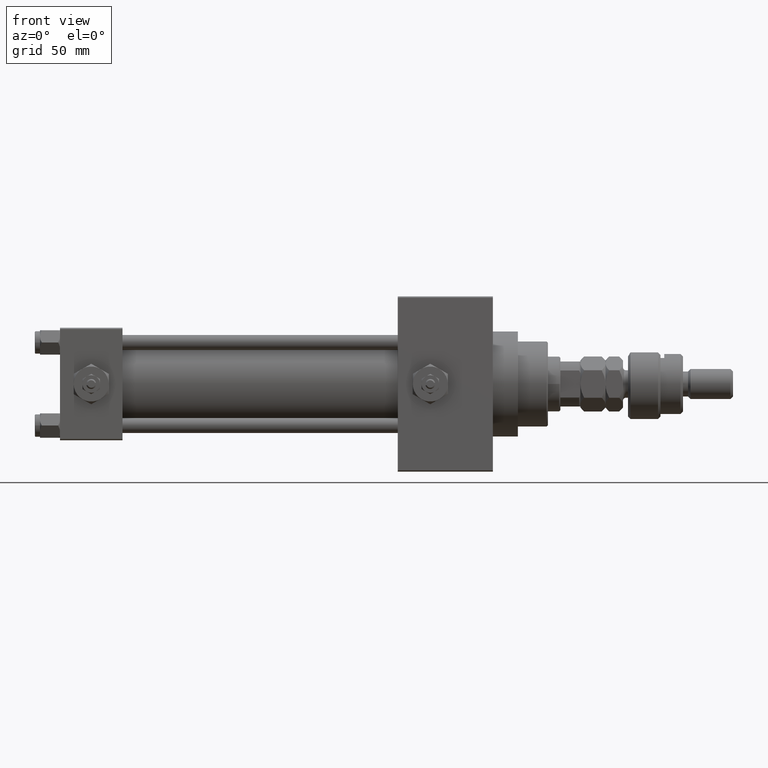
[diagram: clean part render]
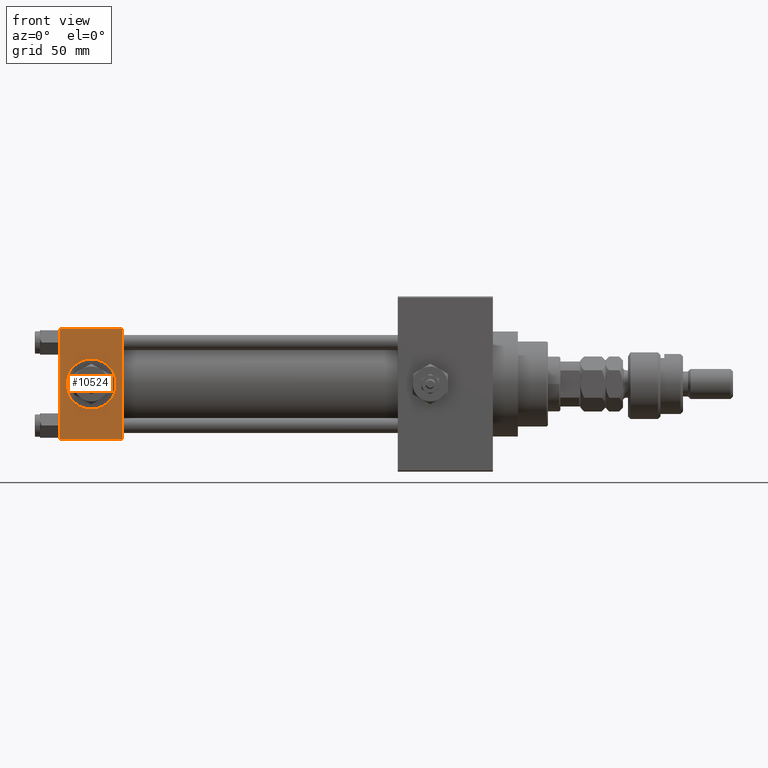
[diagram: same view with one face highlighted and labeled with its STEP entity id]
A machine part, front view. The second image highlights one B-rep face of the part: STEP entity #10524.
In plain terms, the highlighted planar face has unit normal (0, 1, 0).
Its self-contained STEP definition (entity closure, byte-faithful):
#2188 = LINE ( 'NONE', #5606, #29692 ) ;
#2530 = CARTESIAN_POINT ( 'NONE',  ( 0.000000000000000000, -22.50000000000000000, 22.00000000000000000 ) ) ;
#4132 = PLANE ( 'NONE',  #27012 ) ;
#4317 = CARTESIAN_POINT ( 'NONE',  ( 12.50000000000000000, -22.50000000000000000, 0.000000000000000000 ) ) ;
#5606 = CARTESIAN_POINT ( 'NONE',  ( 25.00000000000000000, -22.50000000000000000, 22.50000000000000000 ) ) ;
#6499 = DIRECTION ( 'NONE',  ( 0.000000000000000000, 0.000000000000000000, -1.000000000000000000 ) ) ;
#8325 = FACE_BOUND ( 'NONE', #49631, .T. ) ;
#8475 = VERTEX_POINT ( 'NONE', #2530 ) ;
#8791 = CARTESIAN_POINT ( 'NONE',  ( 12.50000000000000000, -22.50000000000000000, -9.999999999999996447 ) ) ;
#9550 = DIRECTION ( 'NONE',  ( 0.000000000000000000, 0.000000000000000000, -1.000000000000000000 ) ) ;
#10042 = CIRCLE ( 'NONE', #25984, 9.999999999999996447 ) ;
#10524 = ADVANCED_FACE ( 'NONE', ( #8325, #16738 ), #4132, .F. ) ;
#13212 = DIRECTION ( 'NONE',  ( 1.000000000000000000, 0.000000000000000000, 0.000000000000000000 ) ) ;
#13724 = CARTESIAN_POINT ( 'NONE',  ( 25.00000000000000000, -22.50000000000000000, -21.99999999999998579 ) ) ;
#14333 = VERTEX_POINT ( 'NONE', #18522 ) ;
#16233 = CARTESIAN_POINT ( 'NONE',  ( 25.00000000000000000, -22.50000000000000000, 22.00000000000000000 ) ) ;
#16272 = VERTEX_POINT ( 'NONE', #21131 ) ;
#16529 = EDGE_CURVE ( 'NONE', #14333, #45476, #41305, .T. ) ;
#16738 = FACE_OUTER_BOUND ( 'NONE', #41173, .T. ) ;
#17346 = VECTOR ( 'NONE', #6499, 1000.000000000000000 ) ;
#17648 = ORIENTED_EDGE ( 'NONE', *, *, #49648, .F. ) ;
#18042 = EDGE_CURVE ( 'NONE', #8475, #14333, #30419, .T. ) ;
#18522 = CARTESIAN_POINT ( 'NONE',  ( 0.000000000000000000, -22.50000000000000000, -21.99999999999997158 ) ) ;
#19886 = CARTESIAN_POINT ( 'NONE',  ( 25.00000000000000000, -22.50000000000000000, 22.50000000000000000 ) ) ;
#20629 = VERTEX_POINT ( 'NONE', #50908 ) ;
#20679 = DIRECTION ( 'NONE',  ( 0.000000000000000000, -0.000000000000000000, 1.000000000000000000 ) ) ;
#21131 = CARTESIAN_POINT ( 'NONE',  ( 12.50000000000000178, -22.50000000000000000, 9.999999999999996447 ) ) ;
#21208 = VERTEX_POINT ( 'NONE', #8791 ) ;
#24067 = DIRECTION ( 'NONE',  ( 0.000000000000000000, 0.000000000000000000, -1.000000000000000000 ) ) ;
#24641 = EDGE_CURVE ( 'NONE', #20629, #8475, #43555, .T. ) ;
#24966 = VECTOR ( 'NONE', #40378, 1000.000000000000000 ) ;
#25984 = AXIS2_PLACEMENT_3D ( 'NONE', #4317, #43474, #40568 ) ;
#27012 = AXIS2_PLACEMENT_3D ( 'NONE', #19886, #28819, #20679 ) ;
#27073 = CIRCLE ( 'NONE', #42179, 9.999999999999996447 ) ;
#28010 = CARTESIAN_POINT ( 'NONE',  ( 12.50000000000000000, -22.50000000000000000, 0.000000000000000000 ) ) ;
#28819 = DIRECTION ( 'NONE',  ( -0.000000000000000000, 1.000000000000000000, 0.000000000000000000 ) ) ;
#29529 = ORIENTED_EDGE ( 'NONE', *, *, #24641, .T. ) ;
#29692 = VECTOR ( 'NONE', #9550, 1000.000000000000000 ) ;
#30419 = LINE ( 'NONE', #46429, #17346 ) ;
#31787 = ORIENTED_EDGE ( 'NONE', *, *, #16529, .T. ) ;
#39227 = ORIENTED_EDGE ( 'NONE', *, *, #39279, .F. ) ;
#39279 = EDGE_CURVE ( 'NONE', #21208, #16272, #10042, .T. ) ;
#40378 = DIRECTION ( 'NONE',  ( -1.000000000000000000, 0.000000000000000000, 0.000000000000000000 ) ) ;
#40568 = DIRECTION ( 'NONE',  ( 0.000000000000000000, 0.000000000000000000, -1.000000000000000000 ) ) ;
#41173 = EDGE_LOOP ( 'NONE', ( #49623, #31787, #45892, #29529 ) ) ;
#41305 = LINE ( 'NONE', #13724, #42379 ) ;
#42179 = AXIS2_PLACEMENT_3D ( 'NONE', #28010, #51910, #24067 ) ;
#42379 = VECTOR ( 'NONE', #13212, 1000.000000000000000 ) ;
#43474 = DIRECTION ( 'NONE',  ( 0.000000000000000000, -1.000000000000000000, -8.673617379884036705E-17 ) ) ;
#43555 = LINE ( 'NONE', #16233, #24966 ) ;
#45476 = VERTEX_POINT ( 'NONE', #49480 ) ;
#45892 = ORIENTED_EDGE ( 'NONE', *, *, #51809, .F. ) ;
#46429 = CARTESIAN_POINT ( 'NONE',  ( 0.000000000000000000, -22.50000000000000000, 22.50000000000000000 ) ) ;
#49480 = CARTESIAN_POINT ( 'NONE',  ( 25.00000000000000000, -22.50000000000000000, -21.99999999999997158 ) ) ;
#49623 = ORIENTED_EDGE ( 'NONE', *, *, #18042, .T. ) ;
#49631 = EDGE_LOOP ( 'NONE', ( #39227, #17648 ) ) ;
#49648 = EDGE_CURVE ( 'NONE', #16272, #21208, #27073, .T. ) ;
#50908 = CARTESIAN_POINT ( 'NONE',  ( 25.00000000000000000, -22.50000000000000000, 22.00000000000000000 ) ) ;
#51809 = EDGE_CURVE ( 'NONE', #20629, #45476, #2188, .T. ) ;
#51910 = DIRECTION ( 'NONE',  ( 0.000000000000000000, -1.000000000000000000, -8.673617379884036705E-17 ) ) ;